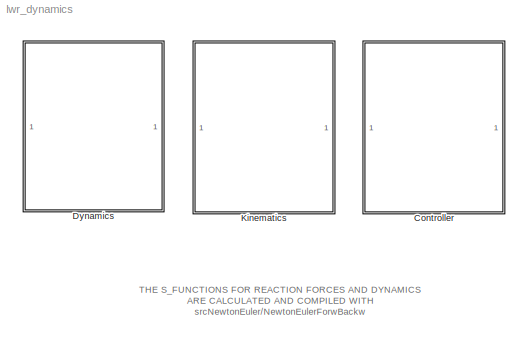
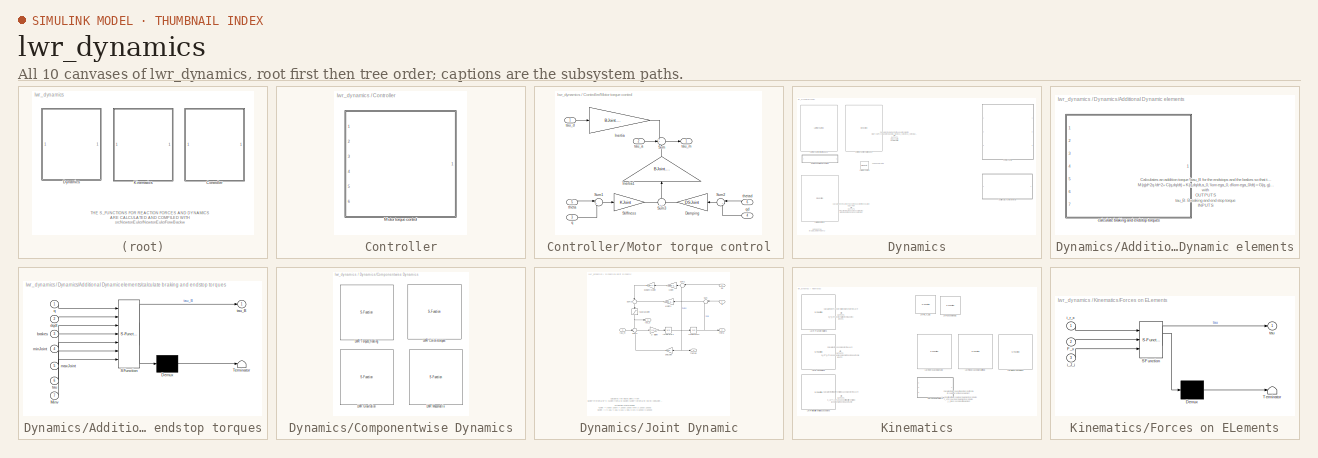
[diagram: thumbnail index - all 10 canvases of the model, root first then tree order]
MODEL lwr_dynamics
KIND library
BLOCK [SubSystem] Controller
  FunctionWithSeparateData = off
  MaskHideContents = off
  MinAlgLoopOccurrences = off
  Opaque = off
  Ports = []
  PropExecContextOutsideSubsystem = off
  RTWSystemCode = Auto
  RequestExecContextInheritance = off
  SID = 1
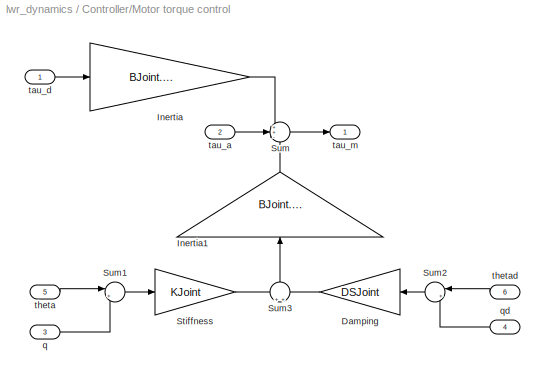
BLOCK [SubSystem] Controller/Motor torque control
  FunctionWithSeparateData = off
  MaskHideContents = off
  MinAlgLoopOccurrences = off
  Opaque = off
  Ports = [6, 1]
  PropExecContextOutsideSubsystem = off
  RTWSystemCode = Auto
  RequestExecContextInheritance = off
  SID = 2
BLOCK [Gain] Controller/Motor torque control/Damping
  Gain = DSJoint
  OutDataTypeStr = Inherit: Inherit via internal rule
  ParamDataTypeStr = Inherit: Inherit via internal rule
  SID = 9
  SaturateOnIntegerOverflow = off
BLOCK [Gain] Controller/Motor torque control/Inertia
  Gain = BJoint./BThetaJoint
  OutDataTypeStr = Inherit: Inherit via internal rule
  ParamDataTypeStr = Inherit: Inherit via internal rule
  SID = 10
  SaturateOnIntegerOverflow = off
BLOCK [Gain] Controller/Motor torque control/Inertia1
  Gain = BJoint./BThetaJoint
  OutDataTypeStr = Inherit: Inherit via internal rule
  ParamDataTypeStr = Inherit: Inherit via internal rule
  SID = 11
  SaturateOnIntegerOverflow = off
BLOCK [Gain] Controller/Motor torque control/Stiffness
  Gain = KJoint
  OutDataTypeStr = Inherit: Inherit via internal rule
  ParamDataTypeStr = Inherit: Inherit via internal rule
  SID = 12
  SaturateOnIntegerOverflow = off
BLOCK [Sum] Controller/Motor torque control/Sum
  IconShape = round
  InputSameDT = off
  Inputs = ++-
  OutDataTypeStr = Inherit: Inherit via internal rule
  Ports = [3, 1]
  SID = 13
  SaturateOnIntegerOverflow = off
BLOCK [Sum] Controller/Motor torque control/Sum1
  IconShape = round
  InputSameDT = off
  Inputs = |+-
  OutDataTypeStr = Inherit: Inherit via internal rule
  Ports = [2, 1]
  SID = 14
  SaturateOnIntegerOverflow = off
BLOCK [Sum] Controller/Motor torque control/Sum2
  IconShape = round
  InputSameDT = off
  Inputs = |+-
  OutDataTypeStr = Inherit: Inherit via internal rule
  Ports = [2, 1]
  SID = 15
  SaturateOnIntegerOverflow = off
BLOCK [Sum] Controller/Motor torque control/Sum3
  IconShape = round
  InputSameDT = off
  OutDataTypeStr = Inherit: Inherit via internal rule
  Ports = [2, 1]
  SID = 16
  SaturateOnIntegerOverflow = off
BLOCK [Inport] Controller/Motor torque control/q
  IconDisplay = Port number
  Port = 3
  SID = 5
BLOCK [Inport] Controller/Motor torque control/qd
  IconDisplay = Port number
  Port = 4
  SID = 6
BLOCK [Inport] Controller/Motor torque control/tau_a
  IconDisplay = Port number
  Port = 2
  SID = 4
BLOCK [Inport] Controller/Motor torque control/tau_d
  IconDisplay = Port number
  SID = 3
BLOCK [Outport] Controller/Motor torque control/tau_m
  IconDisplay = Port number
  SID = 17
BLOCK [Inport] Controller/Motor torque control/theta
  IconDisplay = Port number
  Port = 5
  SID = 7
BLOCK [Inport] Controller/Motor torque control/thetad
  IconDisplay = Port number
  Port = 6
  SID = 8
BLOCK [SubSystem] Dynamics
  FunctionWithSeparateData = off
  MaskHideContents = off
  MinAlgLoopOccurrences = off
  Opaque = off
  Ports = []
  PropExecContextOutsideSubsystem = off
  RTWSystemCode = Auto
  RequestExecContextInheritance = off
  SID = 18
BLOCK [SubSystem] Dynamics/Additional Dynamic elements
  FunctionWithSeparateData = off
  MaskHideContents = off
  MinAlgLoopOccurrences = off
  Opaque = off
  Ports = []
  PropExecContextOutsideSubsystem = off
  RTWSystemCode = Auto
  RequestExecContextInheritance = off
  SID = 19
BLOCK [SubSystem] Dynamics/Additional Dynamic elements/calculate braking and endstop torques
  ErrorFcn = Stateflow.Translate.translate
  FunctionWithSeparateData = off
  MaskHideContents = off
  MinAlgLoopOccurrences = off
  Opaque = off
  PermitHierarchicalResolution = ExplicitOnly
  Ports = [7, 1]
  PropExecContextOutsideSubsystem = off
  RTWSystemCode = Auto
  RequestExecContextInheritance = off
  SFBlockType = MATLAB Function
  SID = 20
  TreatAsAtomicUnit = on
BLOCK [Demux] Dynamics/Additional Dynamic elements/calculate braking and endstop torques/ Demux 
  Outputs = 1
  Ports = [1, 1]
  SID = 20::13
BLOCK [S-Function] Dynamics/Additional Dynamic elements/calculate braking and endstop torques/ SFunction 
  EnableBusSupport = off
  FunctionName = sf_sfun
  PortCounts = [7 2]
  Ports = [7, 2]
  SID = 20::12
  Tag = Stateflow S-Function lwr_dynamics 2
BLOCK [Terminator] Dynamics/Additional Dynamic elements/calculate braking and endstop torques/ Terminator 
  SID = 20::14
BLOCK [Inport] Dynamics/Additional Dynamic elements/calculate braking and endstop torques/Minv
  IconDisplay = Port number
  Port = 7
  SID = 20::7
BLOCK [Inport] Dynamics/Additional Dynamic elements/calculate braking and endstop torques/brakes
  IconDisplay = Port number
  Port = 3
  SID = 20::3
BLOCK [Inport] Dynamics/Additional Dynamic elements/calculate braking and endstop torques/dqdt
  IconDisplay = Port number
  Port = 2
  SID = 20::2
BLOCK [Inport] Dynamics/Additional Dynamic elements/calculate braking and endstop torques/maxJoint
  IconDisplay = Port number
  Port = 5
  SID = 20::5
BLOCK [Inport] Dynamics/Additional Dynamic elements/calculate braking and endstop torques/minJoint
  IconDisplay = Port number
  Port = 4
  SID = 20::4
BLOCK [Inport] Dynamics/Additional Dynamic elements/calculate braking and endstop torques/q
  IconDisplay = Port number
  SID = 20::1
BLOCK [Inport] Dynamics/Additional Dynamic elements/calculate braking and endstop torques/tau
  IconDisplay = Port number
  Port = 6
  SID = 20::6
BLOCK [Outport] Dynamics/Additional Dynamic elements/calculate braking and endstop torques/tau_B
  IconDisplay = Port number
  SID = 20::11
BLOCK [SubSystem] Dynamics/Componentwise Dynamics
  FunctionWithSeparateData = off
  MaskHideContents = off
  MinAlgLoopOccurrences = off
  Opaque = off
  Ports = []
  PropExecContextOutsideSubsystem = off
  RTWSystemCode = Auto
  RequestExecContextInheritance = off
  SID = 23
BLOCK [S-Function] Dynamics/Componentwise Dynamics/LWR Coriolistorques
  EnableBusSupport = off
  FunctionName = lbrDynCoriolis_sfun
  Ports = [5, 1]
  SID = 24
BLOCK [S-Function] Dynamics/Componentwise Dynamics/LWR Gravitation
  EnableBusSupport = off
  FunctionName = lbrDynGravitation_sfun
  Ports = [4, 1]
  SID = 25
BLOCK [S-Function] Dynamics/Componentwise Dynamics/LWR Massmatrix
  EnableBusSupport = off
  FunctionName = lbrDynMass_sfun
  Ports = [4, 1]
  SID = 26
BLOCK [S-Function] Dynamics/Componentwise Dynamics/LWR Torques_floating
  EnableBusSupport = off
  FunctionName = lbrDynFloatingBase_sfun
  Ports = [8, 1]
  SID = 27
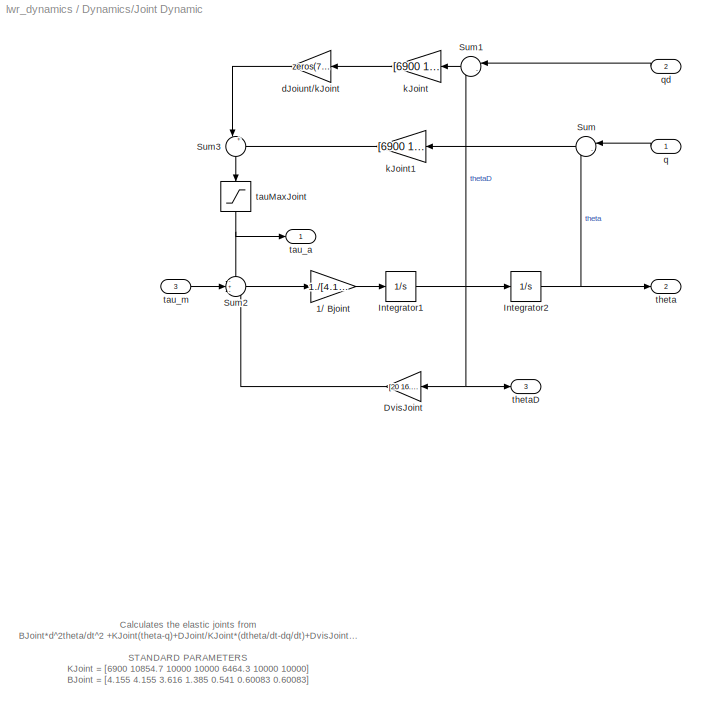
BLOCK [SubSystem] Dynamics/Joint Dynamic
  FunctionWithSeparateData = off
  MaskHideContents = off
  MinAlgLoopOccurrences = off
  Opaque = off
  Ports = [3, 3]
  PropExecContextOutsideSubsystem = off
  RTWSystemCode = Auto
  RequestExecContextInheritance = off
  SID = 28
BLOCK [Gain] Dynamics/Joint Dynamic/1// Bjoint
  Gain = 1./[4.155 4.155 3.616 1.385 0.541 0.60083 0.60083]'
  OutDataTypeStr = Inherit: Inherit via internal rule
  ParamDataTypeStr = Inherit: Inherit via internal rule
  SID = 32
  SaturateOnIntegerOverflow = off
BLOCK [Gain] Dynamics/Joint Dynamic/DvisJoint
  Gain = [20 16.98 16.6 24 18 12 12]'
  OutDataTypeStr = Inherit: Inherit via internal rule
  ParamDataTypeStr = Inherit: Inherit via internal rule
  SID = 33
  SaturateOnIntegerOverflow = off
BLOCK [Integrator] Dynamics/Joint Dynamic/Integrator1
  InitialCondition = zeros(7,1)
  Ports = [1, 1]
  SID = 34
BLOCK [Integrator] Dynamics/Joint Dynamic/Integrator2
  InitialCondition = zeros(7,1)
  Ports = [1, 1]
  SID = 35
BLOCK [Sum] Dynamics/Joint Dynamic/Sum
  IconShape = round
  InputSameDT = off
  Inputs = |-+
  OutDataTypeStr = Inherit: Inherit via internal rule
  Ports = [2, 1]
  SID = 36
  SaturateOnIntegerOverflow = off
BLOCK [Sum] Dynamics/Joint Dynamic/Sum1
  IconShape = round
  InputSameDT = off
  Inputs = |-+
  OutDataTypeStr = Inherit: Inherit via internal rule
  Ports = [2, 1]
  SID = 37
  SaturateOnIntegerOverflow = off
BLOCK [Sum] Dynamics/Joint Dynamic/Sum2
  IconShape = round
  InputSameDT = off
  Inputs = -+-
  OutDataTypeStr = Inherit: Inherit via internal rule
  Ports = [3, 1]
  SID = 38
  SaturateOnIntegerOverflow = off
BLOCK [Sum] Dynamics/Joint Dynamic/Sum3
  IconShape = round
  InputSameDT = off
  Inputs = |++
  OutDataTypeStr = Inherit: Inherit via internal rule
  Ports = [2, 1]
  SID = 39
  SaturateOnIntegerOverflow = off
BLOCK [Gain] Dynamics/Joint Dynamic/dJoiunt//kJoint
  Gain = zeros(7,1)
  OutDataTypeStr = Inherit: Inherit via internal rule
  ParamDataTypeStr = Inherit: Inherit via internal rule
  SID = 40
  SaturateOnIntegerOverflow = off
BLOCK [Gain] Dynamics/Joint Dynamic/kJoint
  Gain = [6900 10854.7 10000 10000 6464.3 10000 10000]'
  OutDataTypeStr = Inherit: Inherit via internal rule
  ParamDataTypeStr = Inherit: Inherit via internal rule
  SID = 41
  SaturateOnIntegerOverflow = off
BLOCK [Gain] Dynamics/Joint Dynamic/kJoint1
  Gain = [6900 10854.7 10000 10000 6464.3 10000 10000]'
  OutDataTypeStr = Inherit: Inherit via internal rule
  ParamDataTypeStr = Inherit: Inherit via internal rule
  SID = 42
  SaturateOnIntegerOverflow = off
BLOCK [Inport] Dynamics/Joint Dynamic/q
  IconDisplay = Port number
  SID = 29
BLOCK [Inport] Dynamics/Joint Dynamic/qd
  IconDisplay = Port number
  Port = 2
  SID = 30
BLOCK [Saturate] Dynamics/Joint Dynamic/tauMaxJoint
  InputPortMap = u0
  LowerLimit = -[180 180 80 80 30 30 30]'
  Ports = [1, 1]
  SID = 43
  UpperLimit = [180 180 80 80 30 30 30]'
BLOCK [Outport] Dynamics/Joint Dynamic/tau_a
  IconDisplay = Port number
  SID = 44
BLOCK [Inport] Dynamics/Joint Dynamic/tau_m
  IconDisplay = Port number
  Port = 3
  SID = 31
BLOCK [Outport] Dynamics/Joint Dynamic/theta
  IconDisplay = Port number
  Port = 2
  SID = 45
BLOCK [Outport] Dynamics/Joint Dynamic/thetaD
  IconDisplay = Port number
  Port = 3
  SID = 46
BLOCK [S-Function] Dynamics/LWR-Dynamics
  EnableBusSupport = off
  FunctionName = lbrDynTcpFloating_sfun
  Ports = [9, 4]
  SID = 51
BLOCK [Reference] Dynamics/LWR-Dynamics floating base  REF=lwr_dynamics/Dynamics/LWR-Dynamics  (lib defined in mdl_dee2bea1b5f3)
  Ports = [9, 4]
  SID = 52
  SourceBlock = lwr_dynamics/Dynamics/LWR-Dynamics
  SourceType = Unknown
BLOCK [S-Function] Dynamics/LWR-Dynamics static base
  EnableBusSupport = off
  FunctionName = lbrDynamicStaticBase_sfun
  Ports = [6, 3]
  SID = 53
BLOCK [S-Function] Dynamics/LWR-Reactions
  EnableBusSupport = off
  FunctionName = lbrDynReaction_sfun
  Ports = [10, 2]
  SID = 54
BLOCK [SubSystem] Kinematics
  FunctionWithSeparateData = off
  MaskHideContents = off
  MinAlgLoopOccurrences = off
  Opaque = off
  Ports = []
  PropExecContextOutsideSubsystem = off
  RTWSystemCode = Auto
  RequestExecContextInheritance = off
  SID = 59
BLOCK [SubSystem] Kinematics/Forces on ELements
  ErrorFcn = Stateflow.Translate.translate
  FunctionWithSeparateData = off
  MaskHideContents = off
  MinAlgLoopOccurrences = off
  Opaque = off
  PermitHierarchicalResolution = ExplicitOnly
  Ports = [3, 1]
  PropExecContextOutsideSubsystem = off
  RTWSystemCode = Auto
  RequestExecContextInheritance = off
  SFBlockType = MATLAB Function
  SID = 60
  TreatAsAtomicUnit = on
BLOCK [Demux] Kinematics/Forces on ELements/ Demux 
  Outputs = 1
  Ports = [1, 1]
  SID = 60::9
BLOCK [S-Function] Kinematics/Forces on ELements/ SFunction 
  EnableBusSupport = off
  FunctionName = sf_sfun
  PortCounts = [3 2]
  Ports = [3, 2]
  SID = 60::8
  Tag = Stateflow S-Function lwr_dynamics 1
BLOCK [Terminator] Kinematics/Forces on ELements/ Terminator 
  SID = 60::10
BLOCK [Inport] Kinematics/Forces on ELements/F_x
  IconDisplay = Port number
  Port = 2
  SID = 60::2
BLOCK [Inport] Kinematics/Forces on ELements/i_J_i
  IconDisplay = Port number
  Port = 3
  SID = 60::3
BLOCK [Inport] Kinematics/Forces on ELements/i_r_x
  IconDisplay = Port number
  SID = 60::1
BLOCK [Outport] Kinematics/Forces on ELements/tau
  IconDisplay = Port number
  SID = 60::7
BLOCK [S-Function] Kinematics/LWR 0_T_EE
  EnableBusSupport = off
  FunctionName = lbrTransformation_EE_sfun
  Ports = [2, 1]
  SID = 61
BLOCK [S-Function] Kinematics/LWR Body Jacobians
  EnableBusSupport = off
  FunctionName = lbrBodyJacobians_sfun
  Ports = [1, 7]
  SID = 62
BLOCK [S-Function] Kinematics/LWR Body Jacobians with EE
  EnableBusSupport = off
  FunctionName = lbrBodyJacobiansWithEE_sfun
  Ports = [2, 8]
  SID = 63
BLOCK [S-Function] Kinematics/LWR Jacobian EE
  EnableBusSupport = off
  FunctionName = lbrJacobian_EE_sfun
  Ports = [2, 1]
  SID = 64
BLOCK [S-Function] Kinematics/LWR Zero Jacobians EE
  EnableBusSupport = off
  FunctionName = lbrZeroJacobiansWithEE_sfun
  Ports = [2, 8]
  SID = 65
BLOCK [S-Function] Kinematics/LWR-Jacobians
  EnableBusSupport = off
  FunctionName = lbrZeroJacobians_sfun
  Ports = [1, 7]
  SID = 66
BLOCK [S-Function] Kinematics/LWR-Transformations
  EnableBusSupport = off
  FunctionName = lbrTransformations_sfun
  Ports = [2, 8]
  SID = 67
BLOCK [S-Function] Kinematics/LWR-time differentiated Jacobians
  EnableBusSupport = off
  FunctionName = lbrJacobiansDot_sfun
  Ports = [2, 7]
  SID = 68
ANNOTATION (root): THE S_FUNCTIONS FOR REACTION FORCES AND DYNAMICS\nARE CALCULATED AND COMPILED WITH \nsrcNewtonEuler/NewtonEulerForwBackw
ANNOTATION Dynamics: Calculates the Elements of the equation of Motion\nM(q)d^2q /dt^2 = C(q,dq/dt) + K(q,dq/dt,a_0, \\omega_0, d\\omega_0/dt) + G(q, g)+<path> M: Mass Matrix\n C: Coriolis Matrix\n K: Coriolis Matrix of floating base\n G: gravitational forces\nINPUTS\n q: Joint angles\n dq/dt: Joint velocities\n m_EE: mass of additional end effector\n rC_EE: position of center of mass of the end effect...<+347ch>
ANNOTATION Dynamics: Calculates the Reaction Forces in the base from the equation\nEQUATION\nwith\nOUTPUTS\n F reaction force in base in 0-coordinates\n M momentum in base in 0-coordinates\nINPUTS\n cf. LWR-Dynamics\n d^2q/dt: Joint accelerations from LWR-Dynamics
ANNOTATION Dynamics: NOCH ZU TUN\nBASISELEMENT GENAU
ANNOTATION Dynamics: This is deprecated
ANNOTATION Dynamics/Additional Dynamic elements: Calculates an addition torque \\tau_B for the endstops and the brakes so that the equation of motion is\nM(q)d^2q /dt^2+ C(q,dq/dt) + K(q,dq/dt,a_0, \\omega_0, d\\omega_0/dt) = G(q, g)+\\tau+<path> tau_B: Breaking and end stop torque\nINPUTS\n q: Joint angles\n dqdt: Joint velocities\n brakes: [7x1] vector with 1 brake on 0 brake off\n minJoint: [7x1] vector of the lower joint li...<+123ch>
ANNOTATION Dynamics/Joint Dynamic: Calculates the elastic joints from \nBJoint*d^2theta/dt^2 +KJoint(theta-q)+DJoint/KJoint*(dtheta/dt-dq/dt)+DvisJoint*dtheta/dt = tau_m\n\nSTANDARD PARAMETERS\nKJoint = [6900 10854.7 10000 10000 6464.3 10000 10000]\nBJoint = [4.155 4.155 3.616 1.385 0.541 0.60083 0.60083]\nDvisJoint = [20 16.98 16.6 24 18 12 12]\nDJoint = [0 0 0 0 0 0 0]\nTauMaxJoint = [180 180 80 80 30 30 30]\n\nINPUTS\n q joint a...<+149ch>
ANNOTATION Kinematics: Calculates the Jacobians for the LWR\n\nwith\nOUTPUTS\n 0<path>: Transposed jacobian matrices in base frame\nINPUTS\n q: Joint angles
ANNOTATION Kinematics: Calculates the Transformationmatrices for the LWR\n\nwith\nOUTPUTS\n 0\\_T\\_X: Transformation from base to X\nINPUTS\n q: Joint angles\n TCP\\_T\\_EE Transformation from TCP to EE
ANNOTATION Kinematics: Calculates the time differentiated Jacobians for the LWR\n\nwith\nOUTPUTS\n 0_Jd^T_X: Transposed jtime differentiated \n jacobian matrices in base frame\nINPUTS\n q: Joint angles\n qd: Joint velocities
ANNOTATION Kinematics: Calculates the torque acting on the robot from a \nforce winder acting on an element\n\ni_r_x: Position of the force winder in element coordinates\nF_x: Force Winder in element coordinates\ni_J_i: Body Jacobian of the element
LINE Controller/Motor torque control/Damping:1 -> Controller/Motor torque control/Sum3:2
LINE Controller/Motor torque control/Inertia1:1 -> Controller/Motor torque control/Sum:3
LINE Controller/Motor torque control/Inertia:1 -> Controller/Motor torque control/Sum:1
LINE Controller/Motor torque control/Stiffness:1 -> Controller/Motor torque control/Sum3:1
LINE Controller/Motor torque control/Sum1:1 -> Controller/Motor torque control/Stiffness:1
LINE Controller/Motor torque control/Sum2:1 -> Controller/Motor torque control/Damping:1
LINE Controller/Motor torque control/Sum3:1 -> Controller/Motor torque control/Inertia1:1
LINE Controller/Motor torque control/Sum:1 -> Controller/Motor torque control/tau_m:1
LINE Controller/Motor torque control/q:1 -> Controller/Motor torque control/Sum1:2
LINE Controller/Motor torque control/qd:1 -> Controller/Motor torque control/Sum2:2
LINE Controller/Motor torque control/tau_a:1 -> Controller/Motor torque control/Sum:2
LINE Controller/Motor torque control/tau_d:1 -> Controller/Motor torque control/Inertia:1
LINE Controller/Motor torque control/theta:1 -> Controller/Motor torque control/Sum1:1
LINE Controller/Motor torque control/thetad:1 -> Controller/Motor torque control/Sum2:1
LINE Dynamics/Additional Dynamic elements/calculate braking and endstop torques/ Demux :1 -> Dynamics/Additional Dynamic elements/calculate braking and endstop torques/ Terminator :1
LINE Dynamics/Additional Dynamic elements/calculate braking and endstop torques/ SFunction :1 -> Dynamics/Additional Dynamic elements/calculate braking and endstop torques/ Demux :1
LINE Dynamics/Additional Dynamic elements/calculate braking and endstop torques/ SFunction :2 -> Dynamics/Additional Dynamic elements/calculate braking and endstop torques/tau_B:1
LINE Dynamics/Additional Dynamic elements/calculate braking and endstop torques/Minv:1 -> Dynamics/Additional Dynamic elements/calculate braking and endstop torques/ SFunction :7
LINE Dynamics/Additional Dynamic elements/calculate braking and endstop torques/brakes:1 -> Dynamics/Additional Dynamic elements/calculate braking and endstop torques/ SFunction :3
LINE Dynamics/Additional Dynamic elements/calculate braking and endstop torques/dqdt:1 -> Dynamics/Additional Dynamic elements/calculate braking and endstop torques/ SFunction :2
LINE Dynamics/Additional Dynamic elements/calculate braking and endstop torques/maxJoint:1 -> Dynamics/Additional Dynamic elements/calculate braking and endstop torques/ SFunction :5
LINE Dynamics/Additional Dynamic elements/calculate braking and endstop torques/minJoint:1 -> Dynamics/Additional Dynamic elements/calculate braking and endstop torques/ SFunction :4
LINE Dynamics/Additional Dynamic elements/calculate braking and endstop torques/q:1 -> Dynamics/Additional Dynamic elements/calculate braking and endstop torques/ SFunction :1
LINE Dynamics/Additional Dynamic elements/calculate braking and endstop torques/tau:1 -> Dynamics/Additional Dynamic elements/calculate braking and endstop torques/ SFunction :6
LINE Dynamics/Joint Dynamic/1// Bjoint:1 -> Dynamics/Joint Dynamic/Integrator1:1
LINE Dynamics/Joint Dynamic/DvisJoint:1 -> Dynamics/Joint Dynamic/Sum2:3
NET Dynamics/Joint Dynamic/Integrator1:1 -> Dynamics/Joint Dynamic/DvisJoint:1, Dynamics/Joint Dynamic/Integrator2:1, Dynamics/Joint Dynamic/Sum1:2, Dynamics/Joint Dynamic/thetaD:1
NET Dynamics/Joint Dynamic/Integrator2:1 -> Dynamics/Joint Dynamic/Sum:2, Dynamics/Joint Dynamic/theta:1
LINE Dynamics/Joint Dynamic/Sum1:1 -> Dynamics/Joint Dynamic/kJoint:1
LINE Dynamics/Joint Dynamic/Sum2:1 -> Dynamics/Joint Dynamic/1// Bjoint:1
LINE Dynamics/Joint Dynamic/Sum3:1 -> Dynamics/Joint Dynamic/tauMaxJoint:1
LINE Dynamics/Joint Dynamic/Sum:1 -> Dynamics/Joint Dynamic/kJoint1:1
LINE Dynamics/Joint Dynamic/dJoiunt//kJoint:1 -> Dynamics/Joint Dynamic/Sum3:1
LINE Dynamics/Joint Dynamic/kJoint1:1 -> Dynamics/Joint Dynamic/Sum3:2
LINE Dynamics/Joint Dynamic/kJoint:1 -> Dynamics/Joint Dynamic/dJoiunt//kJoint:1
LINE Dynamics/Joint Dynamic/q:1 -> Dynamics/Joint Dynamic/Sum:1
LINE Dynamics/Joint Dynamic/qd:1 -> Dynamics/Joint Dynamic/Sum1:1
NET Dynamics/Joint Dynamic/tauMaxJoint:1 -> Dynamics/Joint Dynamic/Sum2:1, Dynamics/Joint Dynamic/tau_a:1
LINE Dynamics/Joint Dynamic/tau_m:1 -> Dynamics/Joint Dynamic/Sum2:2
LINE Kinematics/Forces on ELements/ Demux :1 -> Kinematics/Forces on ELements/ Terminator :1
LINE Kinematics/Forces on ELements/ SFunction :1 -> Kinematics/Forces on ELements/ Demux :1
LINE Kinematics/Forces on ELements/ SFunction :2 -> Kinematics/Forces on ELements/tau:1
LINE Kinematics/Forces on ELements/F_x:1 -> Kinematics/Forces on ELements/ SFunction :2
LINE Kinematics/Forces on ELements/i_J_i:1 -> Kinematics/Forces on ELements/ SFunction :3
LINE Kinematics/Forces on ELements/i_r_x:1 -> Kinematics/Forces on ELements/ SFunction :1
note: NET lines group one-source signal fan-out (src -> all destinations, sorted); 1:1 wires keep LINE
CHART Kinematics/Forces on ELements states=1 transitions=1
  STATE_LABEL 'eML_blk_kernel()'
CHART Dynamics/Additional Dynamic elements/calculate braking and endstop torques states=1 transitions=1
  STATE_LABEL 'eML_blk_kernel()'
note: 3 file-system paths scrubbed to <path> (not preserved elsewhere — flat text is the only slx artifact)
